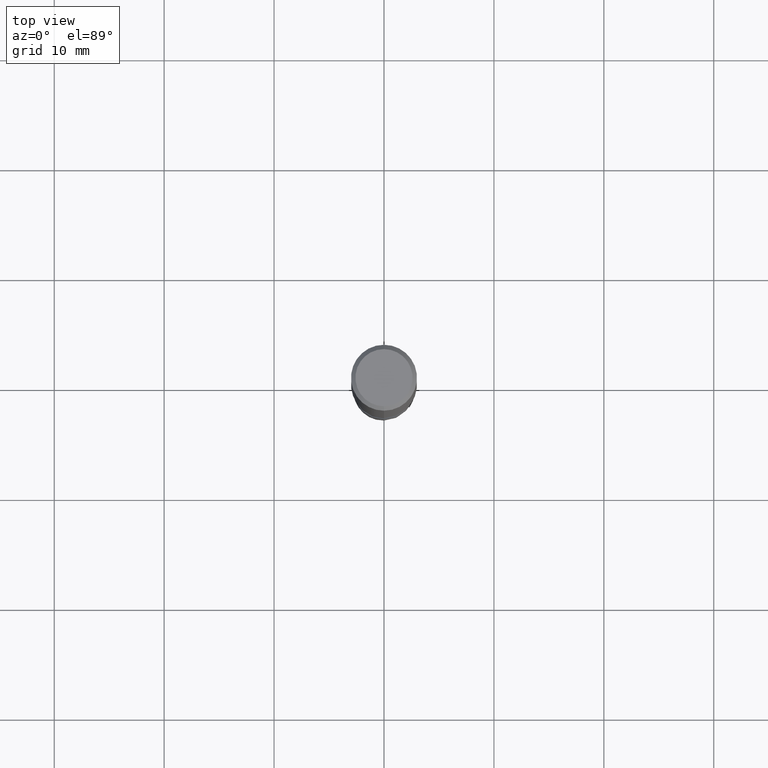
[diagram: clean part render]
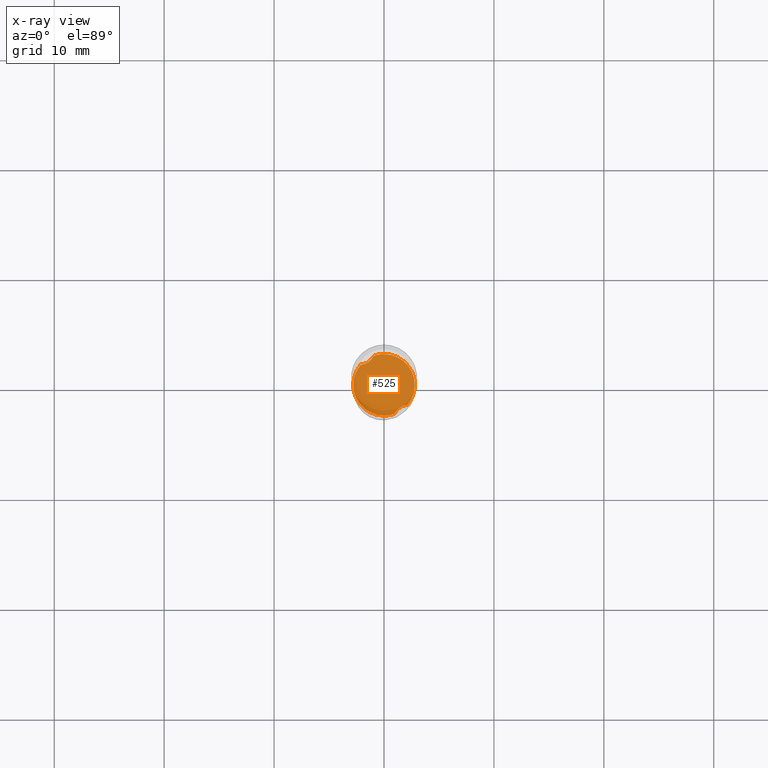
[diagram: x-ray — body ghosted, one internal face saturated and labeled with its STEP entity id]
A machine part, top view, then the same camera in x-ray: the body is ghosted and one INTERNAL B-rep face — a face not visible from any outside direction — is saturated and labeled: STEP entity #525.
In plain terms, the highlighted planar face has unit normal (-0, 0, 1).
Its self-contained STEP definition (entity closure, byte-faithful):
#285=EDGE_CURVE('',#645,#655,#778,.T.);
#317=VERTEX_POINT('',#814);
#331=EDGE_CURVE('',#317,#517,#828,.T.);
#371=EDGE_CURVE('',#487,#645,#872,.T.);
#487=VERTEX_POINT('',#995);
#517=VERTEX_POINT('',#1028);
#525=ADVANCED_FACE('',(#1037),#1038,.T.);
#565=EDGE_CURVE('',#317,#655,#1082,.T.);
#637=VERTEX_POINT('',#1159);
#639=EDGE_CURVE('',#517,#637,#1161,.T.);
#645=VERTEX_POINT('',#1167);
#655=VERTEX_POINT('',#1179);
#691=EDGE_CURVE('',#487,#637,#1221,.T.);
#778=CIRCLE('',#1318,2.7999);
#814=CARTESIAN_POINT('',(0.956145090118629,-2.63158252324377,-38.0));
#828=CIRCLE('',#1820,2.7999);
#872=CIRCLE('',#2171,2.7999);
#995=CARTESIAN_POINT('',(-0.956145090118627,2.63158252324377,-38.0));
#1028=CARTESIAN_POINT('',(3.4477374833176E-016,-2.7999,-38.0));
#1037=FACE_OUTER_BOUND('',#3550,.T.);
#1038=PLANE('',#3551);
#1082=B_SPLINE_CURVE_WITH_KNOTS('',3,(#4499,#4500,#4501,#4502,#4503,#4504,#4505,#4506,#4507,#4508,#4509,#4510),.UNSPECIFIED.,.F.,.F.,(4,2,2,2,2,4),(0.0,0.611286825540685,1.16833665453532,1.72767729825518,2.09141967758428,2.47147720067232),.UNSPECIFIED.);
#1159=CARTESIAN_POINT('',(-2.12041942807811,1.82845876601822,-38.0));
#1161=CIRCLE('',#4674,2.7999);
#1167=CARTESIAN_POINT('',(-3.41304301446412E-016,2.7999,-38.0));
#1179=CARTESIAN_POINT('',(2.12041942807812,-1.82845876601822,-38.0));
#1221=B_SPLINE_CURVE_WITH_KNOTS('',3,(#4903,#4904,#4905,#4906,#4907,#4908,#4909,#4910,#4911,#4912,#4913,#4914),.UNSPECIFIED.,.F.,.F.,(4,2,2,2,2,4),(0.0,0.611286825540691,1.16833665453534,1.72767729825516,2.09141967758423,2.47147720067229),.UNSPECIFIED.);
#1318=AXIS2_PLACEMENT_3D('',#5123,#5124,#5125);
#1820=AXIS2_PLACEMENT_3D('',#5172,#5173,#5174);
#2171=AXIS2_PLACEMENT_3D('',#5217,#5218,#5219);
#3550=EDGE_LOOP('',(#5371,#5372,#5373,#5374,#5375,#5376));
#3551=AXIS2_PLACEMENT_3D('',#5377,#5378,#5379);
#4499=CARTESIAN_POINT('',(0.868846416022896,-2.8499,-38.0));
#4500=CARTESIAN_POINT('',(0.930810443952936,-2.65578785707919,-38.0));
#4501=CARTESIAN_POINT('',(1.02685544225995,-2.47571875060174,-37.9999999999912));
#4502=CARTESIAN_POINT('',(1.27835457394472,-2.17950952330043,-37.9999999999912));
#4503=CARTESIAN_POINT('',(1.42348111657337,-2.06433958646651,-38.0000000000005));
#4504=CARTESIAN_POINT('',(1.75414548182343,-1.89583919431755,-38.0000000000005));
#4505=CARTESIAN_POINT('',(1.93390496255682,-1.84575883036265,-38.0000000000001));
#4506=CARTESIAN_POINT('',(2.23979603268948,-1.81738532791135,-38.0000000000001));
#4507=CARTESIAN_POINT('',(2.36116727887707,-1.8202461053788,-38.0));
#4508=CARTESIAN_POINT('',(2.60680016592702,-1.85182740550537,-38.0));
#4509=CARTESIAN_POINT('',(2.73026407839495,-1.88160487649348,-38.0));
#4510=CARTESIAN_POINT('',(2.8499,-1.92304140693733,-38.0));
#4674=AXIS2_PLACEMENT_3D('',#5499,#5500,#5501);
#4903=CARTESIAN_POINT('',(-0.868846416022896,2.8499,-38.0));
#4904=CARTESIAN_POINT('',(-0.930810443952937,2.65578785707919,-38.0));
#4905=CARTESIAN_POINT('',(-1.02685544225995,2.47571875060174,-37.9999999999912));
#4906=CARTESIAN_POINT('',(-1.27835457394472,2.17950952330043,-37.9999999999912));
#4907=CARTESIAN_POINT('',(-1.42348111657337,2.06433958646651,-38.0000000000005));
#4908=CARTESIAN_POINT('',(-1.75414548182342,1.89583919431756,-38.0000000000005));
#4909=CARTESIAN_POINT('',(-1.93390496255679,1.84575883036265,-38.0000000000001));
#4910=CARTESIAN_POINT('',(-2.23979603268948,1.81738532791135,-38.0000000000001));
#4911=CARTESIAN_POINT('',(-2.36116727887709,1.8202461053788,-38.0));
#4912=CARTESIAN_POINT('',(-2.60680016592702,1.85182740550537,-38.0));
#4913=CARTESIAN_POINT('',(-2.73026407839495,1.88160487649348,-38.0));
#4914=CARTESIAN_POINT('',(-2.8499,1.92304140693733,-38.0));
#5123=CARTESIAN_POINT('',(0.0,0.0,-38.0));
#5124=DIRECTION('',(0.0,0.0,-1.0));
#5125=DIRECTION('',(0.0,1.0,0.0));
#5172=CARTESIAN_POINT('',(0.0,0.0,-38.0));
#5173=DIRECTION('',(0.0,0.0,-1.0));
#5174=DIRECTION('',(0.0,1.0,0.0));
#5217=CARTESIAN_POINT('',(0.0,0.0,-38.0));
#5218=DIRECTION('',(0.0,0.0,-1.0));
#5219=DIRECTION('',(0.0,1.0,0.0));
#5371=ORIENTED_EDGE('',*,*,#565,.T.);
#5372=ORIENTED_EDGE('',*,*,#285,.F.);
#5373=ORIENTED_EDGE('',*,*,#371,.F.);
#5374=ORIENTED_EDGE('',*,*,#691,.T.);
#5375=ORIENTED_EDGE('',*,*,#639,.F.);
#5376=ORIENTED_EDGE('',*,*,#331,.F.);
#5377=CARTESIAN_POINT('',(0.0,1.39995,-38.0));
#5378=DIRECTION('',(-0.0,0.0,1.0));
#5379=DIRECTION('',(0.0,-1.0,0.0));
#5499=CARTESIAN_POINT('',(0.0,0.0,-38.0));
#5500=DIRECTION('',(0.0,0.0,-1.0));
#5501=DIRECTION('',(0.0,1.0,0.0));